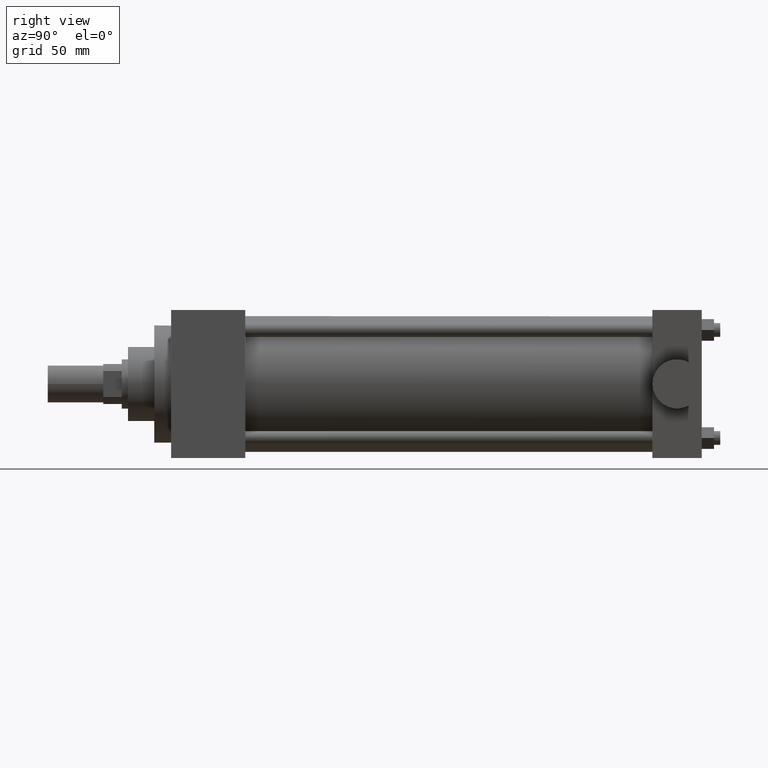
[diagram: clean part render]
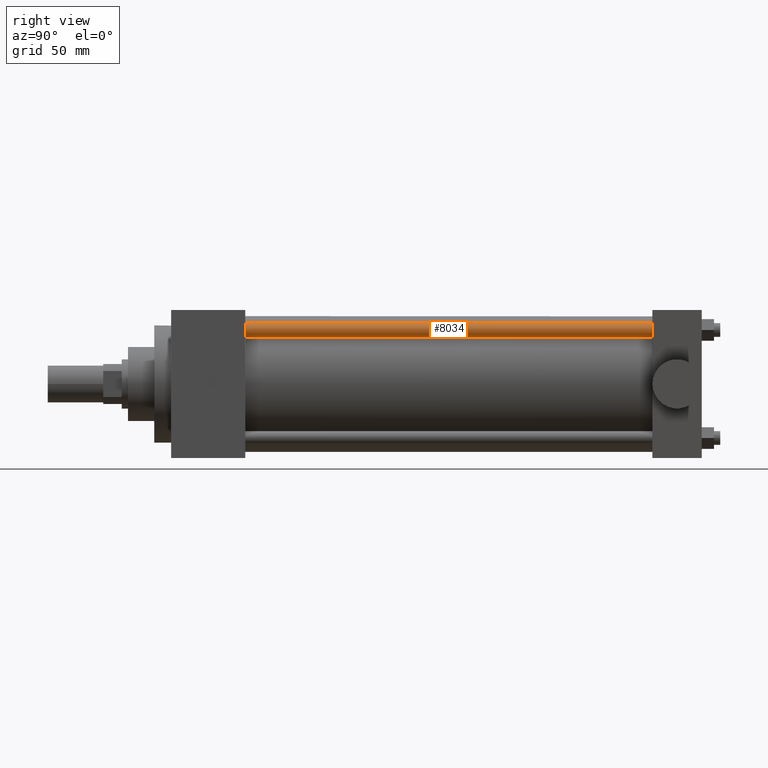
[diagram: same view with one face highlighted and labeled with its STEP entity id]
A machine part, right view. The second image highlights one B-rep face of the part: STEP entity #8034.
In plain terms, the highlighted cylindrical surface (bore or boss wall) has radius 3.5687 mm, axis along (0, 1, 0).
Its self-contained STEP definition (entity closure, byte-faithful):
#511=EDGE_CURVE('',#517,#517,#512,.T.);
#512=CIRCLE('',#513,3.568700000E+000);
#513=AXIS2_PLACEMENT_3D('',#514,#515,#516);
#514=CARTESIAN_POINT('',(2.781300000E+001,7.302500000E+001,2.781300000E+001));
#515=DIRECTION('',(0.0E+000,-1.0E+000,0.0E+000));
#516=DIRECTION('',(0.0E+000,0.0E+000,-1.0E+000));
#517=VERTEX_POINT('',#518);
#518=CARTESIAN_POINT('',(2.781300000E+001,7.302500000E+001,2.424430000E+001));
#1379=FACE_OUTER_BOUND('',#1381,.T.);
#1380=FACE_BOUND('',#1382,.T.);
#1381=EDGE_LOOP('',(#1383));
#1382=EDGE_LOOP('',(#1384));
#1383=ORIENTED_EDGE('',*,*,#511,.F.);
#1384=ORIENTED_EDGE('',*,*,#1431,.T.);
#1385=CYLINDRICAL_SURFACE('',#1386,3.568700000E+000);
#1386=AXIS2_PLACEMENT_3D('',#1387,#1388,#1389);
#1387=CARTESIAN_POINT('',(2.781300000E+001,7.302500000E+001,2.781300000E+001));
#1388=DIRECTION('',(0.0E+000,1.0E+000,0.0E+000));
#1389=DIRECTION('',(0.0E+000,0.0E+000,-1.0E+000));
#1431=EDGE_CURVE('',#1437,#1437,#1432,.T.);
#1432=CIRCLE('',#1433,3.568700000E+000);
#1433=AXIS2_PLACEMENT_3D('',#1434,#1435,#1436);
#1434=CARTESIAN_POINT('',(2.781300000E+001,2.825750000E+002,2.781300000E+001));
#1435=DIRECTION('',(0.0E+000,-1.0E+000,0.0E+000));
#1436=DIRECTION('',(-1.0E+000,0.0E+000,0.0E+000));
#1437=VERTEX_POINT('',#1438);
#1438=CARTESIAN_POINT('',(2.424430000E+001,2.825750000E+002,2.781300000E+001));
#8034=ADVANCED_FACE('',(#1379,#1380),#1385,.T.);